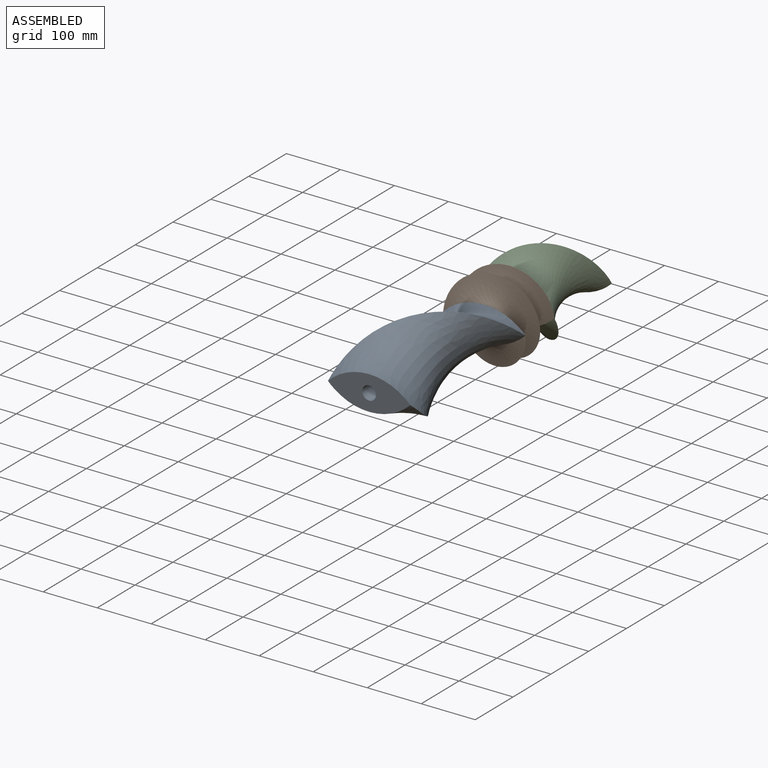
[diagram: assembled view]
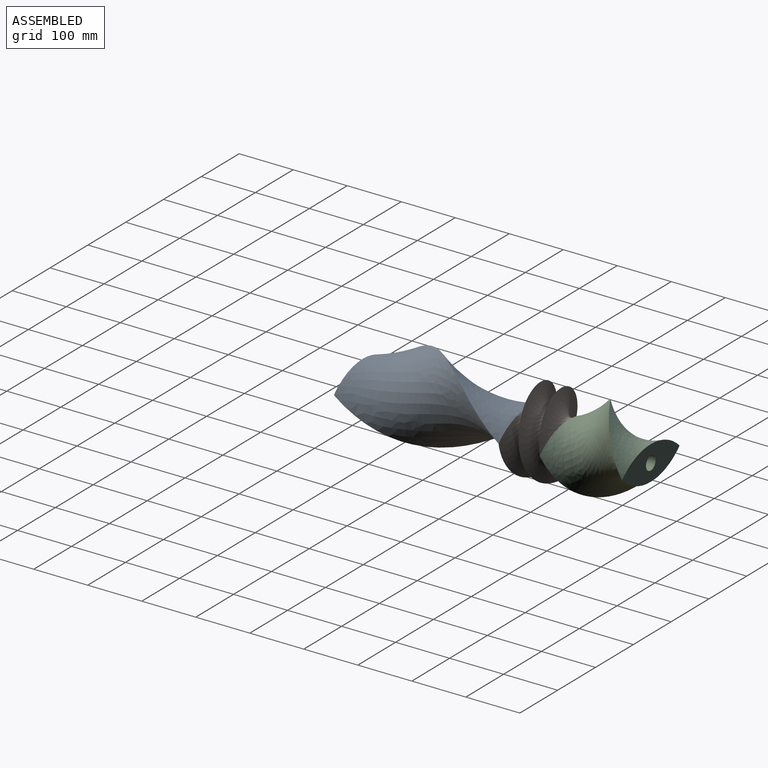
[diagram: assembled view, second angle]
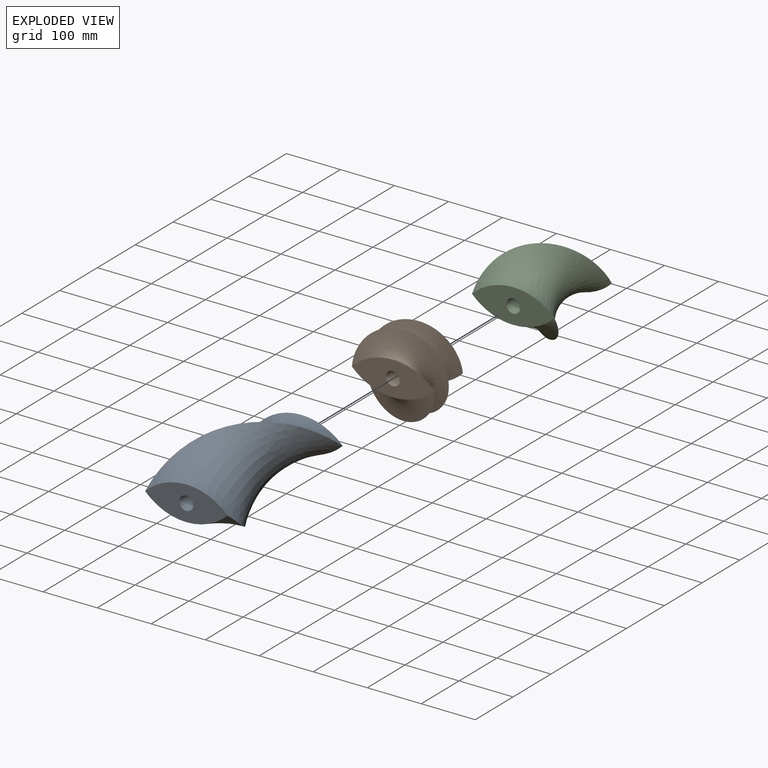
[diagram: exploded view]
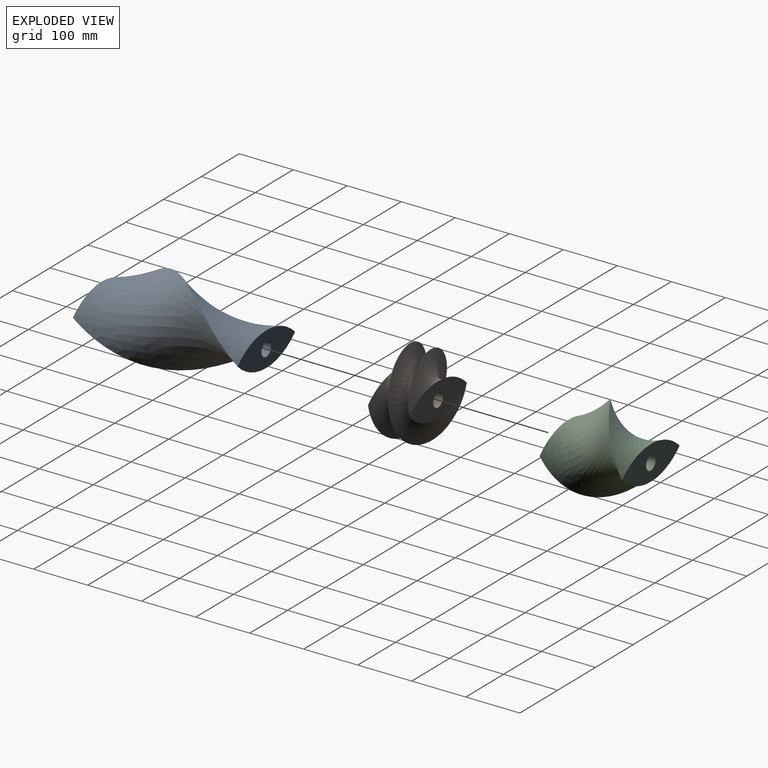
[diagram: exploded view, second angle]
ASSEMBLY  parts=3 mates=4
PART A: 5 faces, bbox 154.9x304.8x154.9 mm
  f0: bspline ~304.8x154.87mm, area 54357.3mm2, adj f1,f2,f3
  f1: bspline ~304.8x154.87mm, area 54357.3mm2, adj f0,f2,f3
  f2: plane 110.49x105.44mm, normal (0,1,0), area 6121.8mm2, adj f0,f1,f4
  f3: plane 110.49x105.44mm, normal (0,-1,0), area 6121.8mm2, adj f0,f1,f4
  f4: cylinder r=12.7mm len=304.8mm, axis (0,1,0), area 24322mm2, adj f2,f3
PART B: 5 faces, bbox 162x76.2x158.6 mm
  f0: bspline ~161.95x156.97mm, area 33925.9mm2, adj f1,f2,f3
  f1: bspline ~161.93x156.95mm, area 33925.9mm2, adj f0,f2,f3
  f2: plane 152.42x63.15mm, normal (0,1,0), area 6121.8mm2, adj f0,f1,f4
  f3: plane 152.42x63.14mm, normal (0,-1,0), area 6121.8mm2, adj f0,f1,f4
  f4: cylinder r=12.7mm len=76.2mm, axis (0,1,0), area 6080.5mm2, adj f2,f3
PART C: 5 faces, bbox 152.4x152.4x152.7 mm
  f0: bspline ~152.68x152.4mm, area 30786.6mm2, adj f1,f2,f3
  f1: bspline ~152.68x152.4mm, area 30786.6mm2, adj f0,f2,f3
  f2: plane 152.42x63.15mm, normal (0,1,0), area 6121.8mm2, adj f0,f1,f4
  f3: plane 152.42x63.14mm, normal (0,-1,0), area 6121.8mm2, adj f0,f1,f4
  f4: cylinder r=12.7mm len=152.4mm, axis (0,1,0), area 12161mm2, adj f2,f3
PLACE A rot(axis=(0,-1,0),46.5deg) t=(0,-381,0)mm
PLACE B rot(axis=(0,-1,0),90deg) t=(0,-76.2,0)mm
PLACE C at identity fixed
MATE cylindrical A.f4 <-> B.f4  axis (0,1,0) through (0,-76.2,0)mm
MATE cylindrical C.f4 <-> B.f4  axis (0,-1,0) through (0,0,0)mm
MATE planar B.f4 <-> C.f4  axis (0,1,0) through (0,0,0)mm
MATE planar B.f4 <-> A.f4  axis (0,-1,0) through (0,-76.2,0)mm
